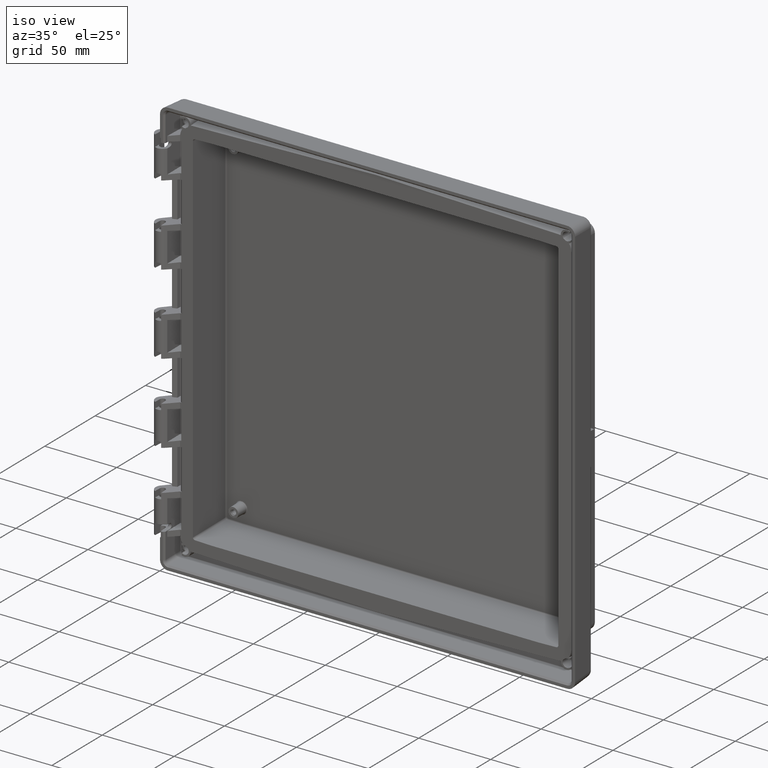
[diagram: clean part render]
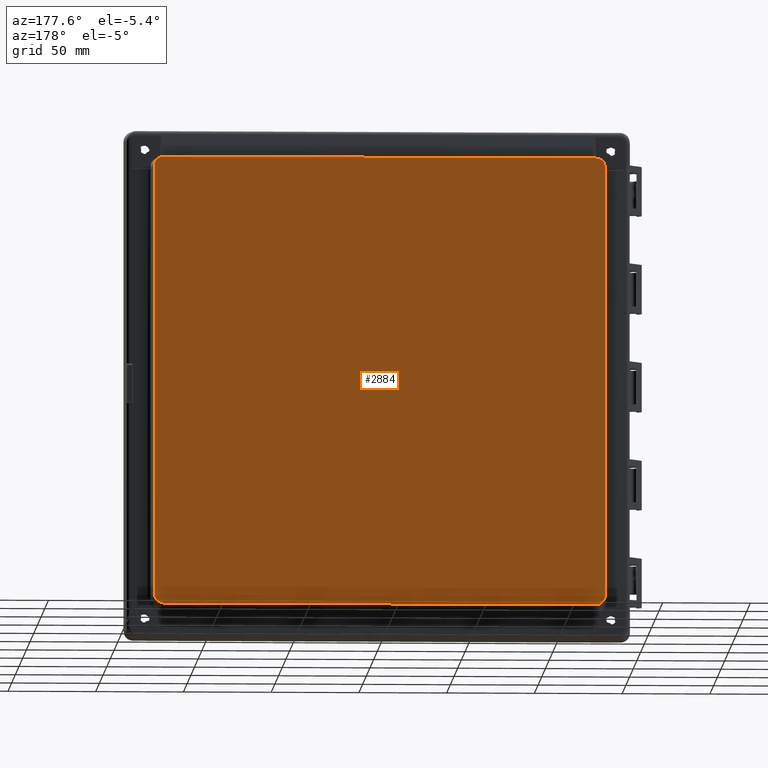
[diagram: tour spotlight — one face highlighted and labeled with its STEP entity id]
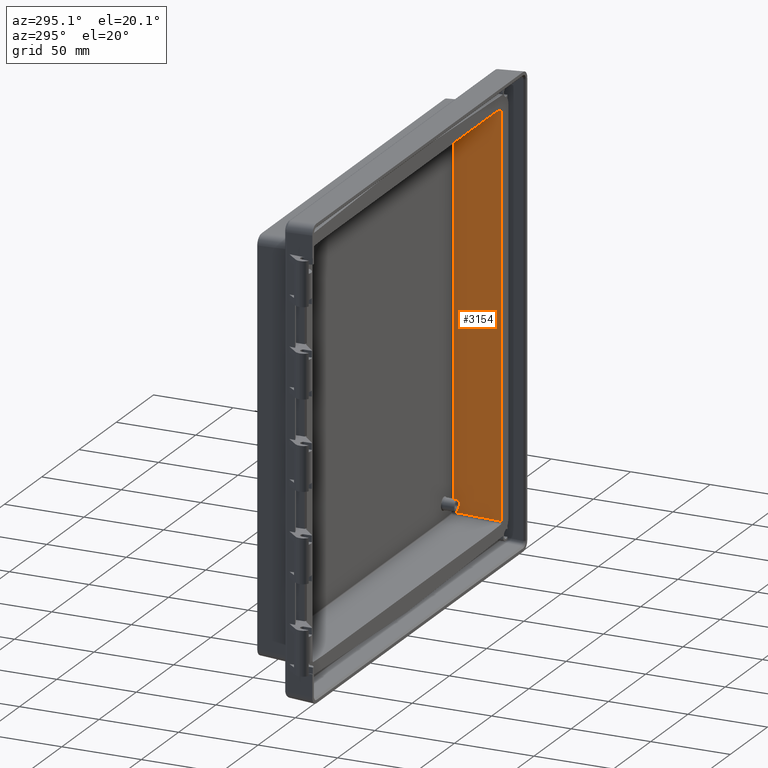
[diagram: tour spotlight — one face highlighted and labeled with its STEP entity id]
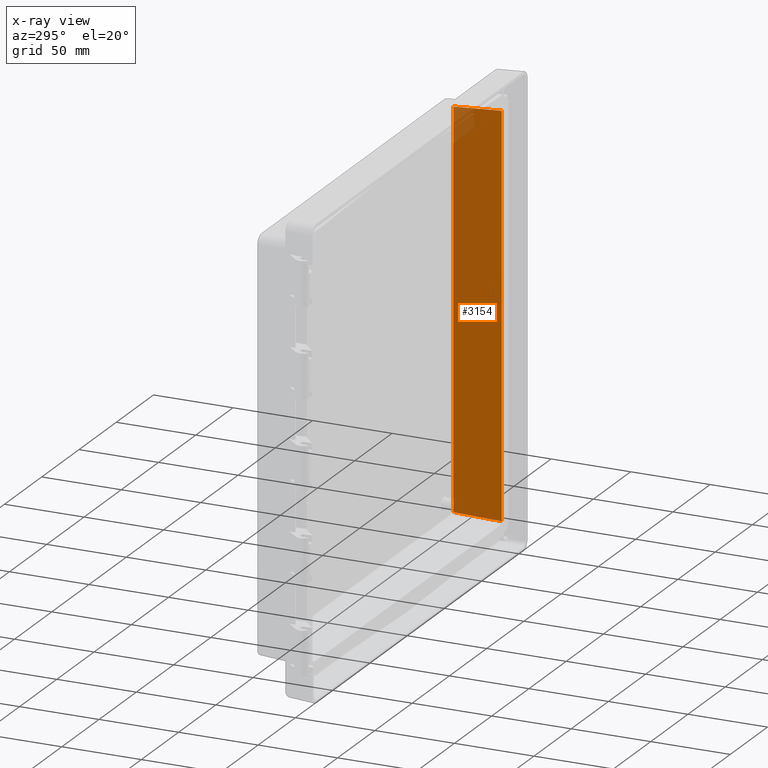
[diagram: x-ray of the same camera — body ghosted, this tour face saturated]
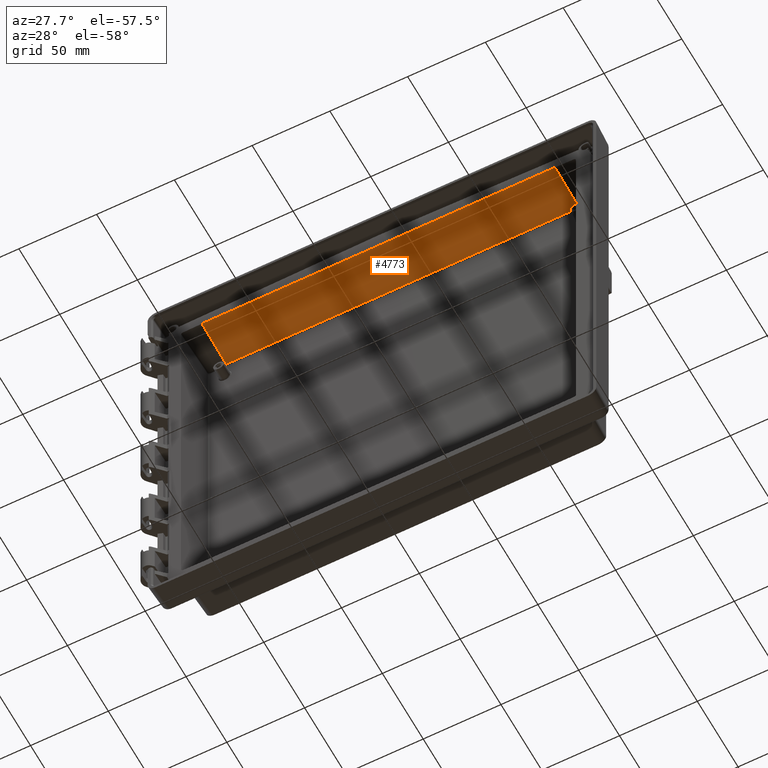
[diagram: tour spotlight — one face highlighted and labeled with its STEP entity id]
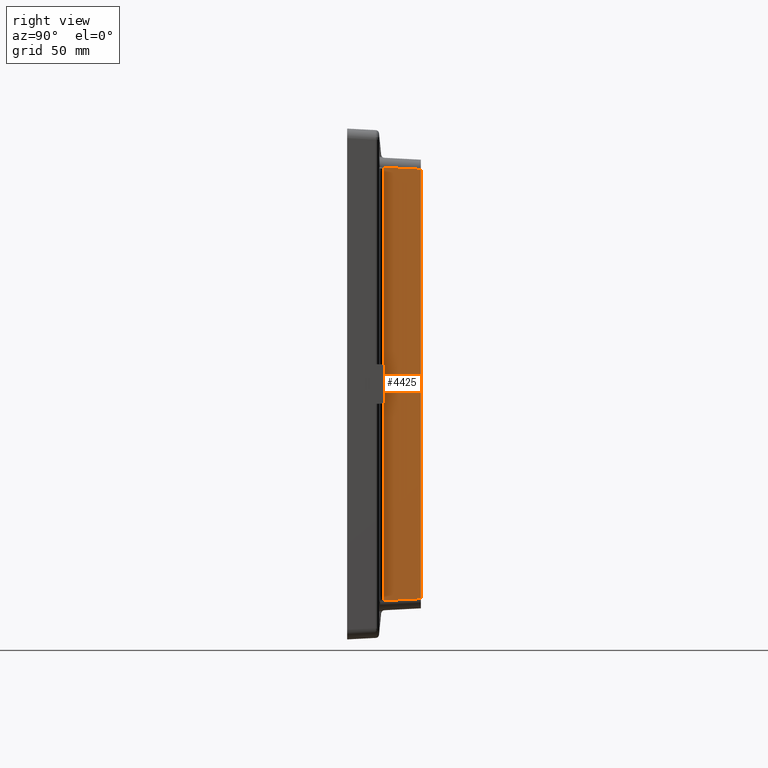
[diagram: tour spotlight — one face highlighted and labeled with its STEP entity id]
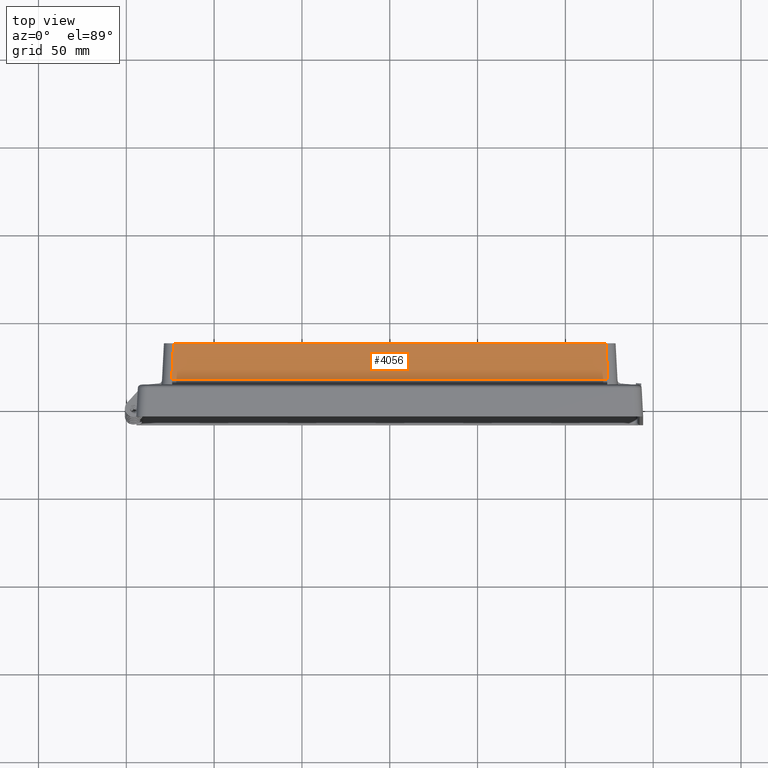
[diagram: tour spotlight — one face highlighted and labeled with its STEP entity id]
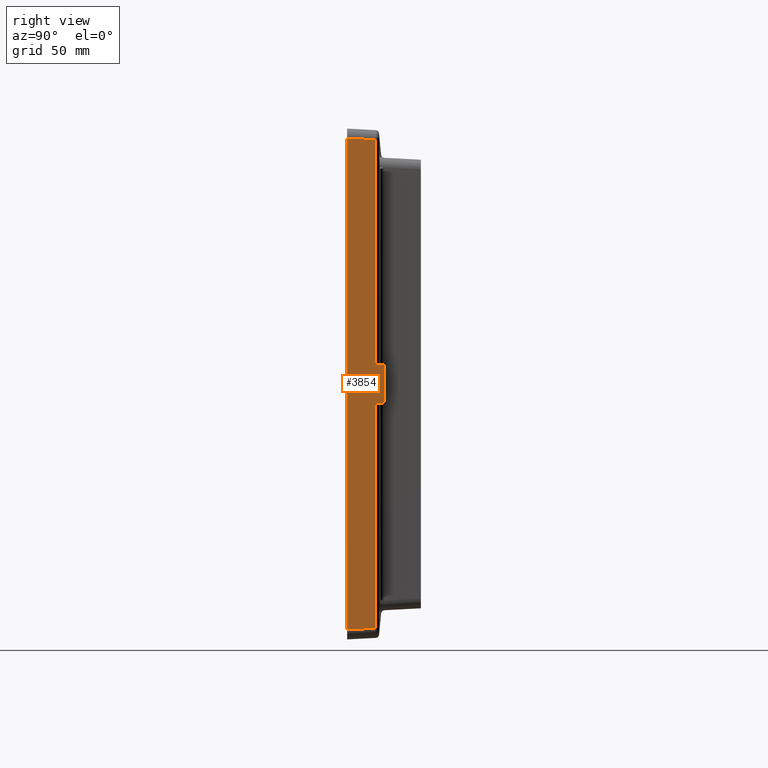
[diagram: tour spotlight — one face highlighted and labeled with its STEP entity id]
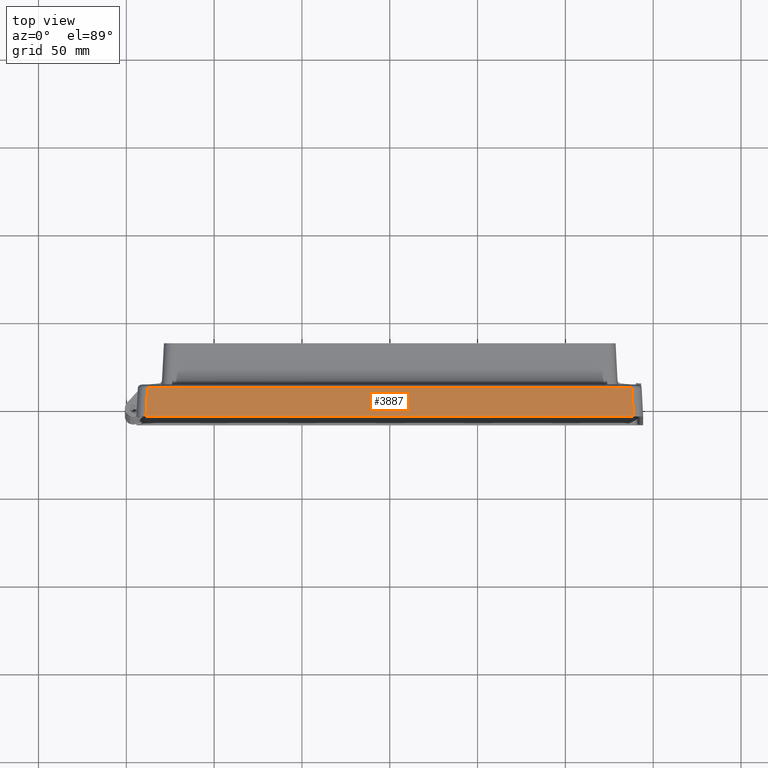
[diagram: tour spotlight — one face highlighted and labeled with its STEP entity id]
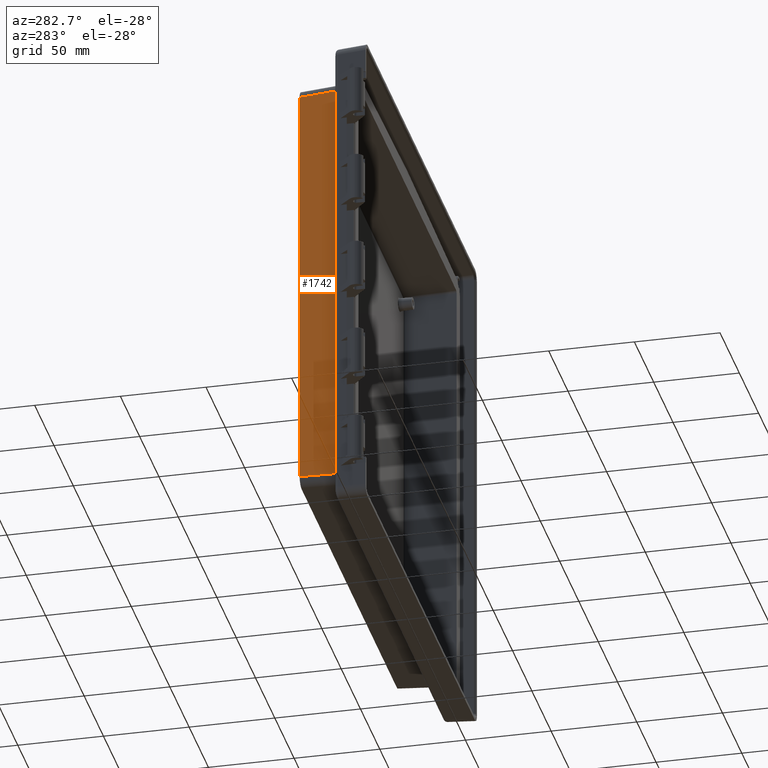
[diagram: tour spotlight — one face highlighted and labeled with its STEP entity id]
A machine part: a face-by-face anatomy tour. The part has 743 B-rep faces; the first image is the clean iso view, then the 8 largest visible faces are spotlighted one at a time (largest first), each with its STEP entity span.

Face 1 — auxiliary view, entity #2884. In plain terms, the highlighted planar face has unit normal (0, 1, -0).
Definition (entity closure, byte-faithful):
#1745 = EDGE_CURVE ( 'NONE', #11895, #11919, #12612, .T. ) ;
#2872 = ORIENTED_EDGE ( 'NONE', *, *, #2873, .F. ) ;
#2873 = EDGE_CURVE ( 'NONE', #11901, #2949, #14256, .T. ) ;
#2874 = ORIENTED_EDGE ( 'NONE', *, *, #11911, .F. ) ;
#2875 = ORIENTED_EDGE ( 'NONE', *, *, #1745, .T. ) ;
#2876 = ORIENTED_EDGE ( 'NONE', *, *, #11924, .F. ) ;
#2884 = ADVANCED_FACE ( 'NONE', ( #14302 ), #14301, .T. ) ;
#2885 = EDGE_LOOP ( 'NONE', ( #2886, #2889, #2892, #2947, #2872, #2874, #2875, #2876 ) ) ;
#2886 = ORIENTED_EDGE ( 'NONE', *, *, #2887, .T. ) ;
#2887 = EDGE_CURVE ( 'NONE', #11923, #2888, #14292, .T. ) ;
#2888 = VERTEX_POINT ( 'NONE', #14286 ) ;
#2889 = ORIENTED_EDGE ( 'NONE', *, *, #2890, .F. ) ;
#2890 = EDGE_CURVE ( 'NONE', #2891, #2888, #14284, .T. ) ;
#2891 = VERTEX_POINT ( 'NONE', #14285 ) ;
#2892 = ORIENTED_EDGE ( 'NONE', *, *, #2945, .F. ) ;
#2945 = EDGE_CURVE ( 'NONE', #2946, #2891, #14494, .T. ) ;
#2946 = VERTEX_POINT ( 'NONE', #14480 ) ;
#2947 = ORIENTED_EDGE ( 'NONE', *, *, #2948, .F. ) ;
#2948 = EDGE_CURVE ( 'NONE', #2949, #2946, #14472, .T. ) ;
#2949 = VERTEX_POINT ( 'NONE', #14471 ) ;
#11895 = VERTEX_POINT ( 'NONE', #28313 ) ;
#11901 = VERTEX_POINT ( 'NONE', #28359 ) ;
#11911 = EDGE_CURVE ( 'NONE', #11895, #11901, #28636, .T. ) ;
#11919 = VERTEX_POINT ( 'NONE', #28670 ) ;
#11923 = VERTEX_POINT ( 'NONE', #28665 ) ;
#11924 = EDGE_CURVE ( 'NONE', #11923, #11919, #28664, .T. ) ;
#12609 = DIRECTION ( 'NONE',  ( 3.603386792499978700E-009, 0.0000000000000000000, 1.000000000000000000 ) ) ;
#12610 = VECTOR ( 'NONE', #12609, 1000.000000000000000 ) ;
#12611 = CARTESIAN_POINT ( 'NONE',  ( -128.5681359447917200, 34.00000000000000000, -1.206215682891809100E-009 ) ) ;
#12612 = LINE ( 'NONE', #12611, #12610 ) ;
#14245 = DIRECTION ( 'NONE',  ( 1.000000000000000000, -1.870275234238606000E-010, -9.801752165201994300E-012 ) ) ;
#14246 = VECTOR ( 'NONE', #14245, 1000.000000000000000 ) ;
#14255 = CARTESIAN_POINT ( 'NONE',  ( 1.206507116435773200E-009, 33.99999997698204600, -127.7181355055829200 ) ) ;
#14256 = LINE ( 'NONE', #14255, #14246 ) ;
#14284 = B_SPLINE_CURVE_WITH_KNOTS ( 'NONE', 3,
 ( #14330, #14329, #14328, #14327, #14326, #14325, #14324, #14323, #14322, #14321, #14320, #14319, #14318, #14317, #14316, #14315, #14314, #14313, #14312, #14311, #14310, #14309, #14308, #14307, #14306, #14305 ),
 .UNSPECIFIED., .F., .F.,
 ( 4, 2, 2, 1, 1, 2, 2, 2, 2, 2, 1, 1, 2, 2, 4 ),
 ( 0.0000000000000000000, 0.1250000000000335800, 0.1875000000000513500, 0.2187500000000626200, 0.2343750000000682200, 0.2421875000000710300, 0.2500000000000738300, 0.5000000000001165700, 0.6250000000001344500, 0.6875000000001462200, 0.7187500000001497700, 0.7343750000001515500, 0.7421875000001548800, 0.7500000000001582100, 1.000000000000000000 ),
 .UNSPECIFIED. ) ;
#14285 = CARTESIAN_POINT ( 'NONE',  ( 128.5681355067892500, 33.99999995396407800, 122.2225573218197500 ) ) ;
#14286 = CARTESIAN_POINT ( 'NONE',  ( 123.0725573194074200, 34.00000000000000000, 127.7181355043765800 ) ) ;
#14287 = DIRECTION ( 'NONE',  ( 1.000000000000000000, 1.870275234238604000E-010, -9.801752165201983000E-012 ) ) ;
#14288 = VECTOR ( 'NONE', #14287, 1000.000000000000000 ) ;
#14289 = CARTESIAN_POINT ( 'NONE',  ( -1.206403033027214600E-009, 33.99999997698204600, 127.7181355055829200 ) ) ;
#14290 = DIRECTION ( 'NONE',  ( 0.0000000000000000000, 0.0000000000000000000, 1.000000000000000000 ) ) ;
#14291 = DIRECTION ( 'NONE',  ( 0.0000000000000000000, 1.000000000000000000, -0.0000000000000000000 ) ) ;
#14292 = LINE ( 'NONE', #14289, #14288 ) ;
#14299 = CARTESIAN_POINT ( 'NONE',  ( 0.0000000000000000000, 34.00000000000000000, 0.0000000000000000000 ) ) ;
#14300 = AXIS2_PLACEMENT_3D ( 'NONE', #14299, #14291, #14290 ) ;
#14301 = PLANE ( 'NONE',  #14300 ) ;
#14302 = FACE_OUTER_BOUND ( 'NONE', #2885, .T. ) ;
#14305 = CARTESIAN_POINT ( 'NONE',  ( 123.0725573194074200, 34.00000000000000000, 127.7181355043765800 ) ) ;
#14306 = CARTESIAN_POINT ( 'NONE',  ( 123.8262814603974500, 34.00006932271326600, 127.7181327521571900 ) ) ;
#14307 = CARTESIAN_POINT ( 'NONE',  ( 124.5428295193994300, 34.00001008939228300, 127.5623699811602700 ) ) ;
#14308 = CARTESIAN_POINT ( 'NONE',  ( 125.1958222557653600, 33.99999968423141200, 127.2922183872671300 ) ) ;
#14309 = CARTESIAN_POINT ( 'NONE',  ( 125.2180538904343900, 33.99999948721435300, 127.2828676774262500 ) ) ;
#14310 = CARTESIAN_POINT ( 'NONE',  ( 125.2598827194698000, 33.99999939697549000, 127.2649505104751700 ) ) ;
#14311 = CARTESIAN_POINT ( 'NONE',  ( 125.3224340222614500, 33.99999965824257200, 127.2376957055053900 ) ) ;
#14312 = CARTESIAN_POINT ( 'NONE',  ( 125.4670126359697100, 34.00000252701167400, 127.1714687502145400 ) ) ;
#14313 = CARTESIAN_POINT ( 'NONE',  ( 125.5884762337906000, 34.00000719313460000, 127.1102630718057000 ) ) ;
#14314 = CARTESIAN_POINT ( 'NONE',  ( 125.8278541850013900, 34.00001618187764800, 126.9821373911130600 ) ) ;
#14315 = CARTESIAN_POINT ( 'NONE',  ( 125.9827026635980300, 34.00002130127625600, 126.8890977480086400 ) ) ;
#14316 = CARTESIAN_POINT ( 'NONE',  ( 126.4310519211209000, 34.00002300705133300, 126.5888864377308100 ) ) ;
#14317 = CARTESIAN_POINT ( 'NONE',  ( 126.7082794026281900, 33.99999976286426300, 126.3605816227583200 ) ) ;
#14318 = CARTESIAN_POINT ( 'NONE',  ( 127.4617326733999900, 34.00000047427152300, 125.6071282804840300 ) ) ;
#14319 = CARTESIAN_POINT ( 'NONE',  ( 127.8718733568609300, 33.99998836856858700, 124.9992827306870700 ) ) ;
#14320 = CARTESIAN_POINT ( 'NONE',  ( 128.1591089235439500, 34.00000036328882700, 124.3049955523335700 ) ) ;
#14321 = CARTESIAN_POINT ( 'NONE',  ( 128.1666758319158500, 34.00000091243691000, 124.2863777582267600 ) ) ;
#14322 = CARTESIAN_POINT ( 'NONE',  ( 128.1826346427742500, 34.00000243778307400, 124.2464869269522300 ) ) ;
#14323 = CARTESIAN_POINT ( 'NONE',  ( 128.2062590309859900, 34.00000530248647800, 124.1864175831204900 ) ) ;
#14324 = CARTESIAN_POINT ( 'NONE',  ( 128.2591517645375600, 34.00001528476654000, 124.0446440473506000 ) ) ;
#14325 = CARTESIAN_POINT ( 'NONE',  ( 128.3005474414011400, 34.00002706284190200, 123.9204311565898400 ) ) ;
#14326 = CARTESIAN_POINT ( 'NONE',  ( 128.3777762036051200, 34.00004971309233100, 123.6686238204254100 ) ) ;
#14327 = CARTESIAN_POINT ( 'NONE',  ( 128.4218430067699300, 34.00006305589375400, 123.4962352880103500 ) ) ;
#14328 = CARTESIAN_POINT ( 'NONE',  ( 128.5293853582832600, 34.00007487603052400, 122.9674820607044600 ) ) ;
#14329 = CARTESIAN_POINT ( 'NONE',  ( 128.5681345778162400, 34.00003448706893700, 122.5993946392701000 ) ) ;
#14330 = CARTESIAN_POINT ( 'NONE',  ( 128.5681355067892500, 33.99999995396407800, 122.2225573218197500 ) ) ;
#14470 = CARTESIAN_POINT ( 'NONE',  ( 123.4494017726701900, 34.00003465766961600, -127.7181345688752100 ) ) ;
#14471 = CARTESIAN_POINT ( 'NONE',  ( 123.0725573218202000, 33.99999995396409200, -127.7181355067892400 ) ) ;
#14472 = B_SPLINE_CURVE_WITH_KNOTS ( 'NONE', 3,
 ( #14474, #14470, #14537, #14536, #14535, #14534, #14533, #14532, #14531, #14530, #14529, #14528, #14527, #14526, #14525, #14524, #14523, #14522, #14521, #14520, #14519, #14518, #14517, #14516, #14515, #14514 ),
 .UNSPECIFIED., .F., .F.,
 ( 4, 2, 2, 1, 1, 2, 2, 2, 2, 2, 1, 1, 2, 2, 4 ),
 ( 0.0000000000000000000, 0.1249999999999602300, 0.1874999999999370200, 0.2187499999999239500, 0.2343749999999167600, 0.2421874999999160700, 0.2499999999999153500, 0.4999999999999112900, 0.6249999999999128500, 0.6874999999999162900, 0.7187499999999201700, 0.7343749999999241700, 0.7421874999999242800, 0.7499999999999242800, 1.000000000000000000 ),
 .UNSPECIFIED. ) ;
#14474 = CARTESIAN_POINT ( 'NONE',  ( 123.0725573218202000, 33.99999995396409200, -127.7181355067892400 ) ) ;
#14480 = CARTESIAN_POINT ( 'NONE',  ( 128.5681355043765800, 34.00000000000000000, -122.2225573194073900 ) ) ;
#14491 = DIRECTION ( 'NONE',  ( 9.869918709275913400E-012, -1.883282680432615100E-010, 1.000000000000000000 ) ) ;
#14492 = VECTOR ( 'NONE', #14491, 1000.000000000000000 ) ;
#14493 = CARTESIAN_POINT ( 'NONE',  ( 128.5681355055829400, 33.99999997698203900, 1.206180988422289600E-009 ) ) ;
#14494 = LINE ( 'NONE', #14493, #14492 ) ;
#14514 = CARTESIAN_POINT ( 'NONE',  ( 128.5681355043765800, 34.00000000000000000, -122.2225573194073900 ) ) ;
#14515 = CARTESIAN_POINT ( 'NONE',  ( 128.5681327704140800, 34.00006897435489600, -122.9762668433222800 ) ) ;
#14516 = CARTESIAN_POINT ( 'NONE',  ( 128.4123755714273300, 34.00001009044216000, -123.6928159857479800 ) ) ;
#14517 = CARTESIAN_POINT ( 'NONE',  ( 128.1422182380397300, 33.99999968419960800, -124.3458226171317200 ) ) ;
#14518 = CARTESIAN_POINT ( 'NONE',  ( 128.1328677031890500, 33.99999948716162400, -124.3680538295969700 ) ) ;
#14519 = CARTESIAN_POINT ( 'NONE',  ( 128.1149505372902400, 33.99999939687404500, -124.4098826575884700 ) ) ;
#14520 = CARTESIAN_POINT ( 'NONE',  ( 128.0876957338838600, 33.99999965807295200, -124.4724339589124900 ) ) ;
#14521 = CARTESIAN_POINT ( 'NONE',  ( 128.0214687821130600, 34.00000252671584600, -124.6170125698782100 ) ) ;
#14522 = CARTESIAN_POINT ( 'NONE',  ( 127.9602631064214500, 34.00000719278141000, -124.7384761664914700 ) ) ;
#14523 = CARTESIAN_POINT ( 'NONE',  ( 127.8321374305585200, 34.00001618146208000, -124.9778541167262500 ) ) ;
#14524 = CARTESIAN_POINT ( 'NONE',  ( 127.7390977898633700, 34.00002130088915900, -125.1327025965970600 ) ) ;
#14525 = CARTESIAN_POINT ( 'NONE',  ( 127.4388864828778800, 34.00002300683358000, -125.5810518628128700 ) ) ;
#14526 = CARTESIAN_POINT ( 'NONE',  ( 127.2105816647666500, 33.99999976287050900, -125.8582793566805700 ) ) ;
#14527 = CARTESIAN_POINT ( 'NONE',  ( 126.4571282877563200, 34.00000047425905300, -126.6117326740065700 ) ) ;
#14528 = CARTESIAN_POINT ( 'NONE',  ( 125.8492827550389600, 33.99998836852569900, -127.0218733436991800 ) ) ;
#14529 = CARTESIAN_POINT ( 'NONE',  ( 125.1549955720927600, 34.00000036328983600, -127.3091089154656600 ) ) ;
#14530 = CARTESIAN_POINT ( 'NONE',  ( 125.1363785906520700, 34.00000091278018000, -127.3166754933237600 ) ) ;
#14531 = CARTESIAN_POINT ( 'NONE',  ( 125.0964885387201500, 34.00000243946750800, -127.3326340033810500 ) ) ;
#14532 = CARTESIAN_POINT ( 'NONE',  ( 125.0364203304651100, 34.00000530714589100, -127.3562579695496900 ) ) ;
#14533 = CARTESIAN_POINT ( 'NONE',  ( 124.8946492050961400, 34.00001530239276800, -127.4091499139605500 ) ) ;
#14534 = CARTESIAN_POINT ( 'NONE',  ( 124.7704379527669100, 34.00002709944578100, -127.4505452201668900 ) ) ;
#14535 = CARTESIAN_POINT ( 'NONE',  ( 124.5186332830145900, 34.00004979161714400, -127.5277735646209200 ) ) ;
#14536 = CARTESIAN_POINT ( 'NONE',  ( 124.3462457114737700, 34.00006316758986500, -127.5718405222918600 ) ) ;
#14537 = CARTESIAN_POINT ( 'NONE',  ( 123.8174926875070000, 34.00007505234594200, -127.6793839005578200 ) ) ;
#28313 = CARTESIAN_POINT ( 'NONE',  ( -128.5681363852068600, 34.00000000000000000, -122.2225573218198100 ) ) ;
#28359 = CARTESIAN_POINT ( 'NONE',  ( -123.0725573194071800, 34.00000000000000000, -127.7181355043765800 ) ) ;
#28601 = CARTESIAN_POINT ( 'NONE',  ( -123.0725573194071800, 34.00000000000000000, -127.7181355043765800 ) ) ;
#28602 = CARTESIAN_POINT ( 'NONE',  ( -123.8262811119270600, 34.00006931576130900, -127.7181327525216700 ) ) ;
#28603 = CARTESIAN_POINT ( 'NONE',  ( -124.5428291743361500, 34.00001009023291200, -127.5623701151368300 ) ) ;
#28604 = CARTESIAN_POINT ( 'NONE',  ( -125.1958222049883200, 33.99999968420613100, -127.2922184085487300 ) ) ;
#28605 = CARTESIAN_POINT ( 'NONE',  ( -125.2180538297947300, 33.99999948716146700, -127.2828677031056800 ) ) ;
#28606 = CARTESIAN_POINT ( 'NONE',  ( -125.2598826579732200, 33.99999939687347700, -127.2649505371240500 ) ) ;
#28607 = CARTESIAN_POINT ( 'NONE',  ( -125.3224339595666100, 33.99999965807150900, -127.2376957335939500 ) ) ;
#28608 = CARTESIAN_POINT ( 'NONE',  ( -125.4670125710851900, 34.00000252671080900, -127.1714687815407800 ) ) ;
#28609 = CARTESIAN_POINT ( 'NONE',  ( -125.5884761680450100, 34.00000719277114300, -127.1102631056273700 ) ) ;
#28610 = CARTESIAN_POINT ( 'NONE',  ( -125.8278541188111500, 34.00001618144027300, -126.9821374293709500 ) ) ;
#28611 = CARTESIAN_POINT ( 'NONE',  ( -125.9827025988200800, 34.00002130085813700, -126.8890977884807000 ) ) ;
#28612 = CARTESIAN_POINT ( 'NONE',  ( -126.4310518648935900, 34.00002300678392700, -126.5888864812826700 ) ) ;
#28613 = CARTESIAN_POINT ( 'NONE',  ( -126.7082793579162300, 33.99999976282072800, -126.3605816635361400 ) ) ;
#28614 = CARTESIAN_POINT ( 'NONE',  ( -127.4617326715354600, 34.00000047435859300, -125.6071282902168600 ) ) ;
#28615 = CARTESIAN_POINT ( 'NONE',  ( -127.8718733433835100, 33.99998836864809000, -124.9992827557801000 ) ) ;
#28616 = CARTESIAN_POINT ( 'NONE',  ( -128.1591089154756600, 34.00000036328598400, -124.3049955720693000 ) ) ;
#28617 = CARTESIAN_POINT ( 'NONE',  ( -128.1666754931624200, 34.00000091277323100, -124.2863785910500700 ) ) ;
#28618 = CARTESIAN_POINT ( 'NONE',  ( -128.1826340030727100, 34.00000243945447700, -124.2464885395001500 ) ) ;
#28619 = CARTESIAN_POINT ( 'NONE',  ( -128.2062579690350500, 34.00000530712454600, -124.1864203318017000 ) ) ;
#28620 = CARTESIAN_POINT ( 'NONE',  ( -128.2591499130602100, 34.00001530235729800, -124.0446492076142800 ) ) ;
#28621 = CARTESIAN_POINT ( 'NONE',  ( -128.3005452190854200, 34.00002709940610400, -123.9204379560883100 ) ) ;
#28622 = CARTESIAN_POINT ( 'NONE',  ( -128.3777735633353200, 34.00004979157638700, -123.6686332876433700 ) ) ;
#28631 = CARTESIAN_POINT ( 'NONE',  ( -128.4218405210818000, 34.00006316755812500, -123.4962457165740200 ) ) ;
#28632 = CARTESIAN_POINT ( 'NONE',  ( -128.5293838998493600, 34.00007505234583500, -122.9674926927091900 ) ) ;
#28633 = CARTESIAN_POINT ( 'NONE',  ( -128.5681345688740000, 34.00003465769552900, -122.5994017761627100 ) ) ;
#28634 = CARTESIAN_POINT ( 'NONE',  ( -128.5681363852068600, 34.00000000000000000, -122.2225573218198100 ) ) ;
#28636 = B_SPLINE_CURVE_WITH_KNOTS ( 'NONE', 3,
 ( #28634, #28633, #28632, #28631, #28622, #28621, #28620, #28619, #28618, #28617, #28616, #28615, #28614, #28613, #28612, #28611, #28610, #28609, #28608, #28607, #28606, #28605, #28604, #28603, #28602, #28601 ),
 .UNSPECIFIED., .F., .F.,
 ( 4, 2, 2, 1, 1, 2, 2, 2, 2, 2, 1, 1, 2, 2, 4 ),
 ( 0.0000000000000000000, 0.1250000000000561500, 0.1875000000000842100, 0.2187500000000997000, 0.2343750000001114900, 0.2421875000001150500, 0.2500000000001185700, 0.5000000000001051400, 0.6250000000001019200, 0.6875000000000990300, 0.7187500000000952600, 0.7343750000000977000, 0.7421875000000989200, 0.7500000000001000300, 1.000000000000000000 ),
 .UNSPECIFIED. ) ;
#28637 = CARTESIAN_POINT ( 'NONE',  ( -127.9602630716839300, 34.00000719312826200, 124.7384762340298900 ) ) ;
#28638 = CARTESIAN_POINT ( 'NONE',  ( -127.8321373909308000, 34.00001618186773600, 124.9778541853225600 ) ) ;
#28639 = CARTESIAN_POINT ( 'NONE',  ( -127.7390977477963800, 34.00002130126432600, 125.1327026639404900 ) ) ;
#28640 = CARTESIAN_POINT ( 'NONE',  ( -127.4388864374858800, 34.00002300703654600, 125.5810519214414600 ) ) ;
#28641 = CARTESIAN_POINT ( 'NONE',  ( -127.2105816225694100, 33.99999976285183600, 125.8582794028184700 ) ) ;
#28642 = CARTESIAN_POINT ( 'NONE',  ( -126.4571282808625300, 34.00000047429639200, 126.6117326730188900 ) ) ;
#28643 = CARTESIAN_POINT ( 'NONE',  ( -125.8492827307927100, 33.99998836859673200, 127.0218733568149500 ) ) ;
#28644 = CARTESIAN_POINT ( 'NONE',  ( -125.1549955523306700, 34.00000036328795300, 127.3091089235450500 ) ) ;
#28645 = CARTESIAN_POINT ( 'NONE',  ( -125.1363785714855500, 34.00000091277657800, 127.3166755010771700 ) ) ;
#28647 = CARTESIAN_POINT ( 'NONE',  ( -125.0964885202736100, 34.00000243946063000, 127.3326340106760200 ) ) ;
#28648 = CARTESIAN_POINT ( 'NONE',  ( -125.0364203130871500, 34.00000530713483500, 127.3562579761771300 ) ) ;
#28649 = CARTESIAN_POINT ( 'NONE',  ( -124.8946491901278600, 34.00001530237612700, 127.4091499191674000 ) ) ;
#28650 = CARTESIAN_POINT ( 'NONE',  ( -124.7704379397103500, 34.00002709943055400, 127.4505452243796800 ) ) ;
#28651 = CARTESIAN_POINT ( 'NONE',  ( -124.5186332735504200, 34.00004979160986800, 127.5277735671096500 ) ) ;
#28659 = CARTESIAN_POINT ( 'NONE',  ( -124.3462457040957500, 34.00006316759468900, 127.5718405239847000 ) ) ;
#28660 = CARTESIAN_POINT ( 'NONE',  ( -123.8174926852907400, 34.00007505238297500, 127.6793839006211200 ) ) ;
#28661 = CARTESIAN_POINT ( 'NONE',  ( -123.4494017724095200, 34.00003465772173400, 127.7181345688724300 ) ) ;
#28662 = CARTESIAN_POINT ( 'NONE',  ( -123.0725573218202300, 33.99999995396409200, 127.7181355067892400 ) ) ;
#28664 = B_SPLINE_CURVE_WITH_KNOTS ( 'NONE', 3,
 ( #28662, #28661, #28660, #28659, #28651, #28650, #28649, #28648, #28647, #28645, #28644, #28643, #28642, #28641, #28640, #28639, #28638, #28637, #28708, #28707, #28706, #28705, #28704, #28703, #28702, #28701 ),
 .UNSPECIFIED., .F., .F.,
 ( 4, 2, 2, 1, 1, 2, 2, 2, 2, 2, 1, 1, 2, 2, 4 ),
 ( 0.0000000000000000000, 0.1249999999999355500, 0.1874999999999047200, 0.2187499999998902000, 0.2343749999998822900, 0.2421874999998765200, 0.2499999999998707400, 0.4999999999999531500, 0.6249999999999977800, 0.6875000000000174300, 0.7187500000000273100, 0.7343750000000323100, 0.7421875000000346400, 0.7500000000000370800, 1.000000000000000000 ),
 .UNSPECIFIED. ) ;
#28665 = CARTESIAN_POINT ( 'NONE',  ( -123.0725573218202300, 33.99999995396409200, 127.7181355067892400 ) ) ;
#28670 = CARTESIAN_POINT ( 'NONE',  ( -128.5681355043765600, 34.00000000000000000, 122.2225573194073700 ) ) ;
#28701 = CARTESIAN_POINT ( 'NONE',  ( -128.5681355043765600, 34.00000000000000000, 122.2225573194073700 ) ) ;
#28702 = CARTESIAN_POINT ( 'NONE',  ( -128.5681327521574500, 34.00006932271276800, 122.9762814599942000 ) ) ;
#28703 = CARTESIAN_POINT ( 'NONE',  ( -128.4123699813139900, 34.00001008940140700, 123.6928295190266200 ) ) ;
#28704 = CARTESIAN_POINT ( 'NONE',  ( -128.1422183872625200, 33.99999968423112100, 124.3458222557768400 ) ) ;
#28705 = CARTESIAN_POINT ( 'NONE',  ( -128.1328676774136600, 33.99999948721375600, 124.3680538904647600 ) ) ;
#28706 = CARTESIAN_POINT ( 'NONE',  ( -128.1149505104499200, 33.99999939697425300, 124.4098827195290200 ) ) ;
#28707 = CARTESIAN_POINT ( 'NONE',  ( -128.0876957054610400, 33.99999965824039100, 124.4724340223620900 ) ) ;
#28708 = CARTESIAN_POINT ( 'NONE',  ( -128.0214687501268100, 34.00000252700722600, 124.6170126361555800 ) ) ;

Face 2 — auxiliary view, entity #3154. An x-ray twin of the same camera follows (body ghosted, this face saturated) — the face is partly hidden behind the body. In plain terms, the highlighted planar face has unit normal (-0.9986, -0.0523, 0).
Definition (entity closure, byte-faithful):
#3106 = EDGE_CURVE ( 'NONE', #3125, #3107, #15105, .T. ) ;
#3107 = VERTEX_POINT ( 'NONE', #15091 ) ;
#3125 = VERTEX_POINT ( 'NONE', #15220 ) ;
#3150 = EDGE_CURVE ( 'NONE', #3151, #3107, #15267, .T. ) ;
#3151 = VERTEX_POINT ( 'NONE', #15263 ) ;
#3154 = ADVANCED_FACE ( 'NONE', ( #15293 ), #15295, .T. ) ;
#3155 = EDGE_LOOP ( 'NONE', ( #3156, #3157, #3158, #3215 ) ) ;
#3156 = ORIENTED_EDGE ( 'NONE', *, *, #3150, .T. ) ;
#3157 = ORIENTED_EDGE ( 'NONE', *, *, #3106, .F. ) ;
#3158 = ORIENTED_EDGE ( 'NONE', *, *, #3159, .T. ) ;
#3159 = EDGE_CURVE ( 'NONE', #3125, #3160, #15335, .T. ) ;
#3160 = VERTEX_POINT ( 'NONE', #15331 ) ;
#3215 = ORIENTED_EDGE ( 'NONE', *, *, #3216, .F. ) ;
#3216 = EDGE_CURVE ( 'NONE', #3151, #3160, #15434, .T. ) ;
#15091 = CARTESIAN_POINT ( 'NONE',  ( 125.4521298545326300, 29.65233595624286900, 122.9272232616049200 ) ) ;
#15092 = DIRECTION ( 'NONE',  ( 0.0000000000000000000, 0.0000000000000000000, 1.000000000000000000 ) ) ;
#15103 = VECTOR ( 'NONE', #15092, 1000.000000000000000 ) ;
#15104 = CARTESIAN_POINT ( 'NONE',  ( 125.4521298545326300, 29.65233595624286900, -2.428612866367529900E-013 ) ) ;
#15105 = LINE ( 'NONE', #15104, #15103 ) ;
#15220 = CARTESIAN_POINT ( 'NONE',  ( 125.4521298545334700, 29.65233595624304600, -122.9272232616052900 ) ) ;
#15262 = CARTESIAN_POINT ( 'NONE',  ( 126.2291363935433600, 14.82616797812149700, 123.6841495203334900 ) ) ;
#15263 = CARTESIAN_POINT ( 'NONE',  ( 127.0061429325540600, 3.469446951953609900E-015, 124.4410757790618000 ) ) ;
#15264 = DIRECTION ( 'NONE',  ( -0.05226806986324944400, 0.9973341854643783500, -0.05091729938709793600 ) ) ;
#15265 = VECTOR ( 'NONE', #15264, 1000.000000000000100 ) ;
#15267 = LINE ( 'NONE', #15262, #15265 ) ;
#15289 = DIRECTION ( 'NONE',  ( 0.05233595624294390400, -0.9986295347545739400, 0.0000000000000000000 ) ) ;
#15290 = DIRECTION ( 'NONE',  ( -0.9986295347545739400, -0.05233595624294390400, 0.0000000000000000000 ) ) ;
#15291 = CARTESIAN_POINT ( 'NONE',  ( 127.0061429325540000, 3.469446951953609900E-015, -125.0000000000000000 ) ) ;
#15292 = AXIS2_PLACEMENT_3D ( 'NONE', #15291, #15290, #15289 ) ;
#15293 = FACE_OUTER_BOUND ( 'NONE', #3155, .T. ) ;
#15295 = PLANE ( 'NONE',  #15292 ) ;
#15331 = CARTESIAN_POINT ( 'NONE',  ( 127.0061429325540000, 3.469446951953609900E-015, -124.4410757790619500 ) ) ;
#15332 = DIRECTION ( 'NONE',  ( 0.05226806986324873700, -0.9973341854643784600, -0.05091729938709442500 ) ) ;
#15333 = VECTOR ( 'NONE', #15332, 1000.000000000000200 ) ;
#15334 = CARTESIAN_POINT ( 'NONE',  ( 126.2291363935433300, 14.82616797812143400, -123.6841495203336900 ) ) ;
#15335 = LINE ( 'NONE', #15334, #15333 ) ;
#15431 = DIRECTION ( 'NONE',  ( -2.230419131453618500E-016, 0.0000000000000000000, -1.000000000000000000 ) ) ;
#15432 = VECTOR ( 'NONE', #15431, 1000.000000000000000 ) ;
#15433 = CARTESIAN_POINT ( 'NONE',  ( 127.0061429325540300, 3.469446951953609900E-015, -7.632783294297951200E-014 ) ) ;
#15434 = LINE ( 'NONE', #15433, #15432 ) ;

Face 3 — auxiliary view, entity #4773. In plain terms, the highlighted planar face has unit normal (0, -0.0523, -0.9986).
Definition (entity closure, byte-faithful):
#1574 = VERTEX_POINT ( 'NONE', #12250 ) ;
#1635 = EDGE_CURVE ( 'NONE', #1574, #1636, #12369, .T. ) ;
#1636 = VERTEX_POINT ( 'NONE', #12368 ) ;
#3165 = EDGE_CURVE ( 'NONE', #3166, #3185, #15323, .T. ) ;
#3166 = VERTEX_POINT ( 'NONE', #15316 ) ;
#3185 = VERTEX_POINT ( 'NONE', #15380 ) ;
#4701 = EDGE_CURVE ( 'NONE', #3166, #1636, #21090, .T. ) ;
#4773 = ADVANCED_FACE ( 'NONE', ( #21130 ), #21125, .T. ) ;
#4774 = EDGE_LOOP ( 'NONE', ( #4775, #4776, #4777, #4779 ) ) ;
#4775 = ORIENTED_EDGE ( 'NONE', *, *, #4701, .T. ) ;
#4776 = ORIENTED_EDGE ( 'NONE', *, *, #1635, .F. ) ;
#4777 = ORIENTED_EDGE ( 'NONE', *, *, #4778, .F. ) ;
#4778 = EDGE_CURVE ( 'NONE', #3185, #1574, #21120, .T. ) ;
#4779 = ORIENTED_EDGE ( 'NONE', *, *, #3165, .F. ) ;
#12250 = CARTESIAN_POINT ( 'NONE',  ( -113.4622346338299200, 29.65233483222445800, 124.7004703914934000 ) ) ;
#12368 = CARTESIAN_POINT ( 'NONE',  ( -113.4789220335278800, 0.0000000000000000000, 126.2545312587521400 ) ) ;
#12369 = B_SPLINE_CURVE_WITH_KNOTS ( 'NONE', 3,
 ( #12414, #12413, #12412, #12411 ),
 .UNSPECIFIED., .F., .F.,
 ( 4, 4 ),
 ( 0.0000000000000000000, 1.000000000000000000 ),
 .UNSPECIFIED. ) ;
#12411 = CARTESIAN_POINT ( 'NONE',  ( -113.4789220335278800, 0.0000000000000000000, 126.2545312587521400 ) ) ;
#12412 = CARTESIAN_POINT ( 'NONE',  ( -113.4751863986135400, 9.884108964064438400, 125.7364473108464600 ) ) ;
#12413 = CARTESIAN_POINT ( 'NONE',  ( -113.4714507636992000, 19.76821792812888400, 125.2183633629407600 ) ) ;
#12414 = CARTESIAN_POINT ( 'NONE',  ( -113.4622346338299200, 29.65233483222445800, 124.7004703914934000 ) ) ;
#15316 = CARTESIAN_POINT ( 'NONE',  ( 113.4789220335499200, 0.0000000000000000000, 126.2545312587521400 ) ) ;
#15317 = DIRECTION ( 'NONE',  ( -0.0006851150356326662300, 0.9986293003848764100, -0.05233594396015200200 ) ) ;
#15318 = VECTOR ( 'NONE', #15317, 1000.000000000000200 ) ;
#15319 = CARTESIAN_POINT ( 'NONE',  ( 113.4687504607764100, 14.82616797812146300, 125.4775247197413800 ) ) ;
#15323 = LINE ( 'NONE', #15319, #15318 ) ;
#15380 = CARTESIAN_POINT ( 'NONE',  ( 113.4585788880029500, 29.65233595624287600, 124.7005181807305700 ) ) ;
#21080 = DIRECTION ( 'NONE',  ( -1.000000000000000000, 0.0000000000000000000, 0.0000000000000000000 ) ) ;
#21081 = VECTOR ( 'NONE', #21080, 1000.000000000000000 ) ;
#21089 = CARTESIAN_POINT ( 'NONE',  ( 1.101896351940467900E-011, 0.0000000000000000000, 126.2545312587521400 ) ) ;
#21090 = LINE ( 'NONE', #21089, #21081 ) ;
#21117 = DIRECTION ( 'NONE',  ( -1.000000000000000000, 0.0000000000000000000, 0.0000000000000000000 ) ) ;
#21118 = VECTOR ( 'NONE', #21117, 1000.000000000000000 ) ;
#21119 = CARTESIAN_POINT ( 'NONE',  ( 3.885780586188047900E-013, 29.65233595624287600, 124.7005181807305700 ) ) ;
#21120 = LINE ( 'NONE', #21119, #21118 ) ;
#21121 = DIRECTION ( 'NONE',  ( 0.0000000000000000000, 0.9986295347545739400, -0.05233595624294390400 ) ) ;
#21122 = DIRECTION ( 'NONE',  ( 0.0000000000000000000, -0.05233595624294390400, -0.9986295347545739400 ) ) ;
#21123 = AXIS2_PLACEMENT_3D ( 'NONE', #21124, #21122, #21121 ) ;
#21124 = CARTESIAN_POINT ( 'NONE',  ( -61.77686386731740200, 3.000000000000000000, 126.0973079209030100 ) ) ;
#21125 = PLANE ( 'NONE',  #21123 ) ;
#21130 = FACE_OUTER_BOUND ( 'NONE', #4774, .T. ) ;

Face 4 — right view, entity #4425. In plain terms, the highlighted planar face has unit normal (0.9986, 0.0523, -0).
Definition (entity closure, byte-faithful):
#2891 = VERTEX_POINT ( 'NONE', #14285 ) ;
#2945 = EDGE_CURVE ( 'NONE', #2946, #2891, #14494, .T. ) ;
#2946 = VERTEX_POINT ( 'NONE', #14480 ) ;
#3367 = VERTEX_POINT ( 'NONE', #16018 ) ;
#3797 = VERTEX_POINT ( 'NONE', #17838 ) ;
#4064 = EDGE_CURVE ( 'NONE', #3367, #2946, #19312, .T. ) ;
#4077 = EDGE_CURVE ( 'NONE', #2891, #3797, #19339, .T. ) ;
#4421 = EDGE_CURVE ( 'NONE', #3367, #3797, #20524, .T. ) ;
#4425 = ADVANCED_FACE ( 'NONE', ( #20525 ), #20544, .T. ) ;
#4426 = EDGE_LOOP ( 'NONE', ( #4427, #4483, #4484, #4485 ) ) ;
#4427 = ORIENTED_EDGE ( 'NONE', *, *, #4077, .T. ) ;
#4483 = ORIENTED_EDGE ( 'NONE', *, *, #4421, .F. ) ;
#4484 = ORIENTED_EDGE ( 'NONE', *, *, #4064, .T. ) ;
#4485 = ORIENTED_EDGE ( 'NONE', *, *, #2945, .T. ) ;
#14285 = CARTESIAN_POINT ( 'NONE',  ( 128.5681355067892500, 33.99999995396407800, 122.2225573218197500 ) ) ;
#14480 = CARTESIAN_POINT ( 'NONE',  ( 128.5681355043765800, 34.00000000000000000, -122.2225573194073900 ) ) ;
#14491 = DIRECTION ( 'NONE',  ( 9.869918709275913400E-012, -1.883282680432615100E-010, 1.000000000000000000 ) ) ;
#14492 = VECTOR ( 'NONE', #14491, 1000.000000000000000 ) ;
#14493 = CARTESIAN_POINT ( 'NONE',  ( 128.5681355055829400, 33.99999997698203900, 1.206180988422289600E-009 ) ) ;
#14494 = LINE ( 'NONE', #14493, #14492 ) ;
#16018 = CARTESIAN_POINT ( 'NONE',  ( 129.6672885657192800, 13.02691097668609600, -123.3239384138185000 ) ) ;
#17838 = CARTESIAN_POINT ( 'NONE',  ( 129.6672606097805300, 13.02744362687426800, 123.3216824450783500 ) ) ;
#19309 = DIRECTION ( 'NONE',  ( -0.05226427757569369200, 0.9972619264783368900, 0.05231725610357429400 ) ) ;
#19310 = VECTOR ( 'NONE', #19309, 1000.000000000000000 ) ;
#19311 = CARTESIAN_POINT ( 'NONE',  ( 129.1177006379845100, 23.51368829972051700, -122.7726786492682700 ) ) ;
#19312 = LINE ( 'NONE', #19311, #19310 ) ;
#19336 = DIRECTION ( 'NONE',  ( 0.05226442768608220000, -0.9972646885840061900, 0.05226442864981203200 ) ) ;
#19337 = VECTOR ( 'NONE', #19336, 1000.000000000000200 ) ;
#19338 = CARTESIAN_POINT ( 'NONE',  ( 129.1176980582848700, 23.51372179041917200, 122.7721198834490500 ) ) ;
#19339 = LINE ( 'NONE', #19338, #19337 ) ;
#20521 = DIRECTION ( 'NONE',  ( 1.125332344861168400E-016, 7.033327155382302400E-018, 1.000000000000000000 ) ) ;
#20522 = VECTOR ( 'NONE', #20521, 1000.000000000000000 ) ;
#20523 = CARTESIAN_POINT ( 'NONE',  ( 129.6672606097805000, 13.02744362687426800, -1.387778780781445700E-013 ) ) ;
#20524 = LINE ( 'NONE', #20523, #20522 ) ;
#20525 = FACE_OUTER_BOUND ( 'NONE', #4426, .T. ) ;
#20540 = DIRECTION ( 'NONE',  ( -0.05233595624294390400, 0.9986295347545739400, 0.0000000000000000000 ) ) ;
#20541 = DIRECTION ( 'NONE',  ( 0.9986295347545739400, 0.05233595624294390400, -1.070175195516640000E-016 ) ) ;
#20542 = AXIS2_PLACEMENT_3D ( 'NONE', #20543, #20541, #20540 ) ;
#20543 = CARTESIAN_POINT ( 'NONE',  ( 130.3499999999999900, 0.0000000000000000000, -129.5000000000000000 ) ) ;
#20544 = PLANE ( 'NONE',  #20542 ) ;

Face 5 — top view, entity #4056. In plain terms, the highlighted planar face has unit normal (-0, 0.0523, 0.9986).
Definition (entity closure, byte-faithful):
#2887 = EDGE_CURVE ( 'NONE', #11923, #2888, #14292, .T. ) ;
#2888 = VERTEX_POINT ( 'NONE', #14286 ) ;
#3931 = EDGE_CURVE ( 'NONE', #3953, #34199, #18402, .T. ) ;
#3953 = VERTEX_POINT ( 'NONE', #18450 ) ;
#4056 = ADVANCED_FACE ( 'NONE', ( #19270 ), #19269, .T. ) ;
#4057 = ORIENTED_EDGE ( 'NONE', *, *, #4072, .T. ) ;
#4058 = ORIENTED_EDGE ( 'NONE', *, *, #2887, .F. ) ;
#4059 = ORIENTED_EDGE ( 'NONE', *, *, #11926, .T. ) ;
#4060 = ORIENTED_EDGE ( 'NONE', *, *, #3931, .F. ) ;
#4072 = EDGE_CURVE ( 'NONE', #3953, #2888, #19343, .T. ) ;
#4079 = EDGE_LOOP ( 'NONE', ( #4057, #4058, #4059, #4060 ) ) ;
#11923 = VERTEX_POINT ( 'NONE', #28665 ) ;
#11926 = EDGE_CURVE ( 'NONE', #11923, #34199, #28663, .T. ) ;
#14286 = CARTESIAN_POINT ( 'NONE',  ( 123.0725573194074200, 34.00000000000000000, 127.7181355043765800 ) ) ;
#14287 = DIRECTION ( 'NONE',  ( 1.000000000000000000, 1.870275234238604000E-010, -9.801752165201983000E-012 ) ) ;
#14288 = VECTOR ( 'NONE', #14287, 1000.000000000000000 ) ;
#14289 = CARTESIAN_POINT ( 'NONE',  ( -1.206403033027214600E-009, 33.99999997698204600, 127.7181355055829200 ) ) ;
#14292 = LINE ( 'NONE', #14289, #14288 ) ;
#18399 = DIRECTION ( 'NONE',  ( -1.000000000000000000, 0.0000000000000000000, 0.0000000000000000000 ) ) ;
#18400 = VECTOR ( 'NONE', #18399, 1000.000000000000000 ) ;
#18401 = CARTESIAN_POINT ( 'NONE',  ( -1.595945597898662500E-013, 13.22099845808221200, 128.8071168309074000 ) ) ;
#18402 = LINE ( 'NONE', #18401, #18400 ) ;
#18450 = CARTESIAN_POINT ( 'NONE',  ( 124.1615386664093100, 13.22099845808221200, 128.8071168309074000 ) ) ;
#19268 = AXIS2_PLACEMENT_3D ( 'NONE', #19320, #19319, #19318 ) ;
#19269 = PLANE ( 'NONE',  #19268 ) ;
#19270 = FACE_OUTER_BOUND ( 'NONE', #4079, .T. ) ;
#19318 = DIRECTION ( 'NONE',  ( 0.0000000000000000000, -0.9986295347545739400, 0.05233595624294390400 ) ) ;
#19319 = DIRECTION ( 'NONE',  ( -0.0000000000000000000, 0.05233595624294390400, 0.9986295347545739400 ) ) ;
#19320 = CARTESIAN_POINT ( 'NONE',  ( -78.65000000000000600, 0.0000000000000000000, 129.5000000000000000 ) ) ;
#19340 = DIRECTION ( 'NONE',  ( -0.05226442866851757600, 0.9972646885830287500, -0.05226442768603108100 ) ) ;
#19341 = VECTOR ( 'NONE', #19340, 999.9999999999998900 ) ;
#19342 = CARTESIAN_POINT ( 'NONE',  ( 123.6170479929083700, 23.61049922904110700, 128.2626261676420000 ) ) ;
#19343 = LINE ( 'NONE', #19342, #19341 ) ;
#28656 = DIRECTION ( 'NONE',  ( -0.05226442866852490400, -0.9972646885830283000, 0.05226442768603041500 ) ) ;
#28657 = VECTOR ( 'NONE', #28656, 1000.000000000000000 ) ;
#28658 = CARTESIAN_POINT ( 'NONE',  ( -123.6170479941149400, 23.61049920602315000, 128.2626261688483300 ) ) ;
#28663 = LINE ( 'NONE', #28658, #28657 ) ;
#28665 = CARTESIAN_POINT ( 'NONE',  ( -123.0725573218202300, 33.99999995396409200, 127.7181355067892400 ) ) ;
#33710 = CARTESIAN_POINT ( 'NONE',  ( -124.1615386664096400, 13.22099845808221200, 128.8071168309074000 ) ) ;
#34199 = VERTEX_POINT ( 'NONE', #33710 ) ;

Face 6 — right view, entity #3854. In plain terms, the highlighted planar face has unit normal (0.9986, 0.0523, 0).
Definition (entity closure, byte-faithful):
#2374 = VERTEX_POINT ( 'NONE', #13665 ) ;
#2917 = VERTEX_POINT ( 'NONE', #14396 ) ;
#2928 = EDGE_CURVE ( 'NONE', #2929, #2930, #14422, .T. ) ;
#2929 = VERTEX_POINT ( 'NONE', #14421 ) ;
#2930 = VERTEX_POINT ( 'NONE', #14403 ) ;
#2951 = VERTEX_POINT ( 'NONE', #14479 ) ;
#2957 = EDGE_CURVE ( 'NONE', #2929, #2951, #14513, .T. ) ;
#2974 = EDGE_CURVE ( 'NONE', #2975, #2917, #14561, .T. ) ;
#2975 = VERTEX_POINT ( 'NONE', #14538 ) ;
#2982 = EDGE_CURVE ( 'NONE', #2975, #2930, #14598, .T. ) ;
#3016 = VERTEX_POINT ( 'NONE', #14704 ) ;
#3018 = EDGE_CURVE ( 'NONE', #2917, #3016, #14700, .T. ) ;
#3763 = VERTEX_POINT ( 'NONE', #17411 ) ;
#3765 = EDGE_CURVE ( 'NONE', #3766, #3763, #17456, .T. ) ;
#3766 = VERTEX_POINT ( 'NONE', #17452 ) ;
#3804 = EDGE_CURVE ( 'NONE', #3763, #2951, #17912, .T. ) ;
#3854 = ADVANCED_FACE ( 'NONE', ( #18184 ), #18187, .T. ) ;
#3855 = EDGE_LOOP ( 'NONE', ( #3856, #3857, #3914, #3916, #3917, #3918, #3919, #3920, #3921, #3922 ) ) ;
#3856 = ORIENTED_EDGE ( 'NONE', *, *, #3870, .T. ) ;
#3857 = ORIENTED_EDGE ( 'NONE', *, *, #3858, .T. ) ;
#3858 = EDGE_CURVE ( 'NONE', #3868, #2374, #18174, .T. ) ;
#3868 = VERTEX_POINT ( 'NONE', #18208 ) ;
#3870 = EDGE_CURVE ( 'NONE', #3016, #3868, #18203, .T. ) ;
#3914 = ORIENTED_EDGE ( 'NONE', *, *, #3915, .T. ) ;
#3915 = EDGE_CURVE ( 'NONE', #2374, #3766, #18366, .T. ) ;
#3916 = ORIENTED_EDGE ( 'NONE', *, *, #3765, .T. ) ;
#3917 = ORIENTED_EDGE ( 'NONE', *, *, #3804, .T. ) ;
#3918 = ORIENTED_EDGE ( 'NONE', *, *, #2957, .F. ) ;
#3919 = ORIENTED_EDGE ( 'NONE', *, *, #2928, .T. ) ;
#3920 = ORIENTED_EDGE ( 'NONE', *, *, #2982, .F. ) ;
#3921 = ORIENTED_EDGE ( 'NONE', *, *, #2974, .T. ) ;
#3922 = ORIENTED_EDGE ( 'NONE', *, *, #3018, .T. ) ;
#13665 = CARTESIAN_POINT ( 'NONE',  ( 144.2692622342640000, -8.000000000000000000, 139.9267997931139900 ) ) ;
#14396 = CARTESIAN_POINT ( 'NONE',  ( 143.2173183224587400, 12.07228556898587400, 11.09964163019074600 ) ) ;
#14403 = CARTESIAN_POINT ( 'NONE',  ( 143.1671705889749800, 13.02916132616920000, -10.10101209543580600 ) ) ;
#14404 = CARTESIAN_POINT ( 'NONE',  ( 143.1671705889749800, 13.02916132616920000, -10.10101209543580600 ) ) ;
#14405 = CARTESIAN_POINT ( 'NONE',  ( 143.1672727402602200, 13.02721216353347000, -10.23484906752013900 ) ) ;
#14406 = CARTESIAN_POINT ( 'NONE',  ( 143.1685403268237500, 13.00302517105186000, -10.35892679435273000 ) ) ;
#14407 = CARTESIAN_POINT ( 'NONE',  ( 143.1715816041259500, 12.94499414314252100, -10.50182489632881700 ) ) ;
#14408 = CARTESIAN_POINT ( 'NONE',  ( 143.1723128107036300, 12.93104189048692200, -10.53220915788631600 ) ) ;
#14409 = CARTESIAN_POINT ( 'NONE',  ( 143.1738515948671300, 12.90168013953086200, -10.58862133307843600 ) ) ;
#14410 = CARTESIAN_POINT ( 'NONE',  ( 143.1763590932376900, 12.85383422037816500, -10.67068788910605400 ) ) ;
#14411 = CARTESIAN_POINT ( 'NONE',  ( 143.1794645579842600, 12.79457842306968200, -10.74509932485192300 ) ) ;
#14412 = CARTESIAN_POINT ( 'NONE',  ( 143.1864727759787900, 12.66085365757832200, -10.88371536930137200 ) ) ;
#14413 = CARTESIAN_POINT ( 'NONE',  ( 143.1918846099279100, 12.55758971426442700, -10.95668327066724300 ) ) ;
#14414 = CARTESIAN_POINT ( 'NONE',  ( 143.1995562555565000, 12.41120599540506900, -11.02323842522440800 ) ) ;
#14415 = CARTESIAN_POINT ( 'NONE',  ( 143.2010072944636900, 12.38351852367778800, -11.03420830894826700 ) ) ;
#14416 = CARTESIAN_POINT ( 'NONE',  ( 143.2040915330559300, 12.32466774552177400, -11.05449127701683300 ) ) ;
#14417 = CARTESIAN_POINT ( 'NONE',  ( 143.2088167615036100, 12.23450501563088000, -11.08091778255295500 ) ) ;
#14418 = CARTESIAN_POINT ( 'NONE',  ( 143.2138386016292500, 12.13868259776937500, -11.09535044838879100 ) ) ;
#14419 = CARTESIAN_POINT ( 'NONE',  ( 143.2173183224587700, 12.07228556898588100, -11.09964163019037600 ) ) ;
#14421 = CARTESIAN_POINT ( 'NONE',  ( 143.2173183224587700, 12.07228556898588100, -11.09964163019037600 ) ) ;
#14422 = B_SPLINE_CURVE_WITH_KNOTS ( 'NONE', 3,
 ( #14419, #14418, #14417, #14416, #14415, #14414, #14413, #14412, #14411, #14410, #14409, #14408, #14407, #14406, #14405, #14404 ),
 .UNSPECIFIED., .F., .F.,
 ( 4, 1, 2, 2, 2, 1, 2, 2, 4 ),
 ( 0.0000000000000000000, 0.1249999999999970300, 0.1874999999999967800, 0.2499999999999965600, 0.4999999999999941200, 0.6249999999999931200, 0.6874999999999931200, 0.7499999999999930100, 1.000000000000000000 ),
 .UNSPECIFIED. ) ;
#14479 = CARTESIAN_POINT ( 'NONE',  ( 143.4161132971652000, 8.279051483778996400, -11.29652283257701100 ) ) ;
#14510 = DIRECTION ( 'NONE',  ( 0.05226579549633216700, -0.9972907879583751100, -0.05176263975589852400 ) ) ;
#14511 = VECTOR ( 'NONE', #14510, 1000.000000000000100 ) ;
#14512 = CARTESIAN_POINT ( 'NONE',  ( 143.3167158098119700, 10.17566852638244000, -11.19808223138369400 ) ) ;
#14513 = LINE ( 'NONE', #14512, #14511 ) ;
#14538 = CARTESIAN_POINT ( 'NONE',  ( 143.1671705889749800, 13.02916132616920000, 10.10101209543617500 ) ) ;
#14539 = CARTESIAN_POINT ( 'NONE',  ( 143.2173183224587400, 12.07228556898587400, 11.09964163019074600 ) ) ;
#14540 = CARTESIAN_POINT ( 'NONE',  ( 143.2103399133639200, 12.20544154678744600, 11.09103587599990300 ) ) ;
#14541 = CARTESIAN_POINT ( 'NONE',  ( 143.2039077813545900, 12.32817393685113300, 11.06113113070742700 ) ) ;
#14542 = CARTESIAN_POINT ( 'NONE',  ( 143.1965504626997800, 12.46855993975838800, 10.99712646021481000 ) ) ;
#14543 = CARTESIAN_POINT ( 'NONE',  ( 143.1949852391382500, 12.49842618448219000, 10.98189515260686000 ) ) ;
#14544 = CARTESIAN_POINT ( 'NONE',  ( 143.1920913252724300, 12.55364535051822000, 10.95026082010950000 ) ) ;
#14545 = CARTESIAN_POINT ( 'NONE',  ( 143.1878932279004200, 12.63374982030302500, 10.89920723057258200 ) ) ;
#14546 = CARTESIAN_POINT ( 'NONE',  ( 143.1841234508082700, 12.70568145228013000, 10.83734736866301200 ) ) ;
#14547 = CARTESIAN_POINT ( 'NONE',  ( 143.1771549903305900, 12.83864759915741900, 10.69921928168035300 ) ) ;
#14548 = CARTESIAN_POINT ( 'NONE',  ( 143.1734986195885700, 12.90841530906694800, 10.59226236796617500 ) ) ;
#14549 = CARTESIAN_POINT ( 'NONE',  ( 143.1703420309347300, 12.96864660863875700, 10.44349100292590800 ) ) ;
#14550 = CARTESIAN_POINT ( 'NONE',  ( 143.1698295559134800, 12.97842521456847800, 10.41531684775445200 ) ) ;
#14551 = CARTESIAN_POINT ( 'NONE',  ( 143.1689043343629900, 12.99607949343972300, 10.35562680447347700 ) ) ;
#14552 = CARTESIAN_POINT ( 'NONE',  ( 143.1677350732387600, 13.01839032477374800, 10.26433012445051100 ) ) ;
#14553 = CARTESIAN_POINT ( 'NONE',  ( 143.1672215257193000, 13.02818939518928900, 10.16774859912311000 ) ) ;
#14554 = CARTESIAN_POINT ( 'NONE',  ( 143.1671705889749800, 13.02916132616920000, 10.10101209543617500 ) ) ;
#14561 = B_SPLINE_CURVE_WITH_KNOTS ( 'NONE', 3,
 ( #14554, #14553, #14552, #14551, #14550, #14549, #14548, #14547, #14546, #14545, #14544, #14543, #14542, #14541, #14540, #14539 ),
 .UNSPECIFIED., .F., .F.,
 ( 4, 1, 2, 2, 2, 1, 2, 2, 4 ),
 ( 0.0000000000000000000, 0.1250000000000046100, 0.1875000000000048800, 0.2500000000000051600, 0.5000000000000065500, 0.6250000000000083300, 0.6875000000000068800, 0.7500000000000054400, 1.000000000000000000 ),
 .UNSPECIFIED. ) ;
#14595 = DIRECTION ( 'NONE',  ( 0.0000000000000000000, 0.0000000000000000000, -1.000000000000000000 ) ) ;
#14596 = VECTOR ( 'NONE', #14595, 1000.000000000000000 ) ;
#14597 = CARTESIAN_POINT ( 'NONE',  ( 143.1671705889749800, 13.02916132616920000, 1.847480501915299600E-013 ) ) ;
#14598 = LINE ( 'NONE', #14597, #14596 ) ;
#14697 = DIRECTION ( 'NONE',  ( 0.05226579549633223600, -0.9972907879583751100, 0.05176263975589858600 ) ) ;
#14698 = VECTOR ( 'NONE', #14697, 1000.000000000000100 ) ;
#14699 = CARTESIAN_POINT ( 'NONE',  ( 143.3167158098119400, 10.17566852638243400, 11.19808223138406300 ) ) ;
#14700 = LINE ( 'NONE', #14699, #14698 ) ;
#14704 = CARTESIAN_POINT ( 'NONE',  ( 143.4161132971651700, 8.279051483778994600, 11.29652283257738100 ) ) ;
#17411 = CARTESIAN_POINT ( 'NONE',  ( 143.4161132971652000, 8.279051483778996400, -139.0736508560149800 ) ) ;
#17452 = CARTESIAN_POINT ( 'NONE',  ( 144.2692622342640000, -8.000000000000000000, -139.9267997931140100 ) ) ;
#17453 = DIRECTION ( 'NONE',  ( -0.05226442768871513600, 0.9972646886342372300, 0.05226442768871342900 ) ) ;
#17454 = VECTOR ( 'NONE', #17453, 1000.000000000000200 ) ;
#17455 = CARTESIAN_POINT ( 'NONE',  ( 143.8426877657145700, 0.1395257418895070000, -139.5002253245650100 ) ) ;
#17456 = LINE ( 'NONE', #17455, #17454 ) ;
#17909 = DIRECTION ( 'NONE',  ( 0.0000000000000000000, 0.0000000000000000000, 1.000000000000000000 ) ) ;
#17910 = VECTOR ( 'NONE', #17909, 1000.000000000000000 ) ;
#17911 = CARTESIAN_POINT ( 'NONE',  ( 143.4161132971652000, 8.279051483778996400, -75.18508684429599500 ) ) ;
#17912 = LINE ( 'NONE', #17911, #17910 ) ;
#18171 = DIRECTION ( 'NONE',  ( 0.05226442768871347700, -0.9972646886342366700, 0.05226442768872707800 ) ) ;
#18172 = VECTOR ( 'NONE', #18171, 1000.000000000000100 ) ;
#18173 = CARTESIAN_POINT ( 'NONE',  ( 143.8426877657147400, 0.1395257418895078900, 139.5002253245644400 ) ) ;
#18174 = LINE ( 'NONE', #18173, #18172 ) ;
#18175 = DIRECTION ( 'NONE',  ( -0.05233595624294390400, 0.9986295347545739400, 0.0000000000000000000 ) ) ;
#18176 = DIRECTION ( 'NONE',  ( 0.9986295347545739400, 0.05233595624294390400, 9.557771573752039200E-017 ) ) ;
#18183 = AXIS2_PLACEMENT_3D ( 'NONE', #18185, #18176, #18175 ) ;
#18184 = FACE_OUTER_BOUND ( 'NONE', #3855, .T. ) ;
#18185 = CARTESIAN_POINT ( 'NONE',  ( 143.8499999999999900, 0.0000000000000000000, 145.0000000000000000 ) ) ;
#18187 = PLANE ( 'NONE',  #18183 ) ;
#18200 = DIRECTION ( 'NONE',  ( 0.0000000000000000000, 0.0000000000000000000, 1.000000000000000000 ) ) ;
#18201 = VECTOR ( 'NONE', #18200, 1000.000000000000000 ) ;
#18202 = CARTESIAN_POINT ( 'NONE',  ( 143.4161132971651700, 8.279051483778994600, 75.18508684429606600 ) ) ;
#18203 = LINE ( 'NONE', #18202, #18201 ) ;
#18208 = CARTESIAN_POINT ( 'NONE',  ( 143.4161132971650300, 8.279051483778989300, 139.0736508560148600 ) ) ;
#18363 = DIRECTION ( 'NONE',  ( 0.0000000000000000000, 0.0000000000000000000, -1.000000000000000000 ) ) ;
#18364 = VECTOR ( 'NONE', #18363, 1000.000000000000000 ) ;
#18365 = CARTESIAN_POINT ( 'NONE',  ( 144.2692622342640000, -8.000000000000000000, -1.387778780781445700E-014 ) ) ;
#18366 = LINE ( 'NONE', #18365, #18364 ) ;

Face 7 — top view, entity #3887. In plain terms, the highlighted planar face has unit normal (0, 0.0523, 0.9986).
Definition (entity closure, byte-faithful):
#1697 = VERTEX_POINT ( 'NONE', #12532 ) ;
#1699 = EDGE_CURVE ( 'NONE', #12005, #1697, #12531, .T. ) ;
#3887 = ADVANCED_FACE ( 'NONE', ( #18271 ), #18270, .T. ) ;
#3888 = ORIENTED_EDGE ( 'NONE', *, *, #3889, .F. ) ;
#3889 = EDGE_CURVE ( 'NONE', #12005, #3907, #18259, .T. ) ;
#3890 = ORIENTED_EDGE ( 'NONE', *, *, #1699, .T. ) ;
#3891 = ORIENTED_EDGE ( 'NONE', *, *, #3892, .T. ) ;
#3892 = EDGE_CURVE ( 'NONE', #1697, #3910, #18255, .T. ) ;
#3893 = ORIENTED_EDGE ( 'NONE', *, *, #3909, .T. ) ;
#3907 = VERTEX_POINT ( 'NONE', #18377 ) ;
#3909 = EDGE_CURVE ( 'NONE', #3910, #3907, #18372, .T. ) ;
#3910 = VERTEX_POINT ( 'NONE', #18368 ) ;
#3913 = EDGE_LOOP ( 'NONE', ( #3888, #3890, #3891, #3893 ) ) ;
#12005 = VERTEX_POINT ( 'NONE', #28982 ) ;
#12518 = DIRECTION ( 'NONE',  ( -0.05226442768872538400, -0.9972646886342367800, 0.05226442768871348400 ) ) ;
#12529 = VECTOR ( 'NONE', #12518, 1000.000000000000000 ) ;
#12530 = CARTESIAN_POINT ( 'NONE',  ( -138.3502253245646300, 0.1395257418895096100, 144.9926877657147800 ) ) ;
#12531 = LINE ( 'NONE', #12530, #12529 ) ;
#12532 = CARTESIAN_POINT ( 'NONE',  ( -138.7767997931140100, -8.000000000000000000, 145.4192622342640100 ) ) ;
#18252 = DIRECTION ( 'NONE',  ( 1.000000000000000000, 0.0000000000000000000, 0.0000000000000000000 ) ) ;
#18253 = VECTOR ( 'NONE', #18252, 1000.000000000000000 ) ;
#18254 = CARTESIAN_POINT ( 'NONE',  ( 0.0000000000000000000, -8.000000000000000000, 145.4192622342640100 ) ) ;
#18255 = LINE ( 'NONE', #18254, #18253 ) ;
#18256 = DIRECTION ( 'NONE',  ( 1.000000000000000000, 0.0000000000000000000, -1.006193478905378600E-016 ) ) ;
#18257 = VECTOR ( 'NONE', #18256, 1000.000000000000000 ) ;
#18258 = CARTESIAN_POINT ( 'NONE',  ( -4.163336342344337000E-014, 8.279051483778998100, 144.5661132971651700 ) ) ;
#18259 = LINE ( 'NONE', #18258, #18257 ) ;
#18260 = DIRECTION ( 'NONE',  ( 0.0000000000000000000, -0.9986295347545739400, 0.05233595624294390400 ) ) ;
#18261 = DIRECTION ( 'NONE',  ( 1.174471930672920400E-016, 0.05233595624294390400, 0.9986295347545739400 ) ) ;
#18262 = AXIS2_PLACEMENT_3D ( 'NONE', #18269, #18261, #18260 ) ;
#18269 = CARTESIAN_POINT ( 'NONE',  ( 143.8499999999999900, 0.0000000000000000000, 145.0000000000000000 ) ) ;
#18270 = PLANE ( 'NONE',  #18262 ) ;
#18271 = FACE_OUTER_BOUND ( 'NONE', #3913, .T. ) ;
#18368 = CARTESIAN_POINT ( 'NONE',  ( 138.7767997931140100, -8.000000000000000000, 145.4192622342640100 ) ) ;
#18369 = DIRECTION ( 'NONE',  ( -0.05226442768871347000, 0.9972646886342373400, -0.05226442768871347000 ) ) ;
#18370 = VECTOR ( 'NONE', #18369, 1000.000000000000100 ) ;
#18371 = CARTESIAN_POINT ( 'NONE',  ( 138.3502253245644600, 0.1395257418894974600, 144.9926877657146100 ) ) ;
#18372 = LINE ( 'NONE', #18371, #18370 ) ;
#18377 = CARTESIAN_POINT ( 'NONE',  ( 137.9236508560150300, 8.279053702265596100, 144.5661131808978200 ) ) ;
#28982 = CARTESIAN_POINT ( 'NONE',  ( -137.9236508560150900, 8.279051483778998100, 144.5661132971651700 ) ) ;

Face 8 — auxiliary view, entity #1742. In plain terms, the highlighted planar face has unit normal (-0.9986, 0.0523, 0).
Definition (entity closure, byte-faithful):
#240 = EDGE_CURVE ( 'NONE', #33213, #19101, #9119, .T. ) ;
#1683 = EDGE_LOOP ( 'NONE', ( #1743, #1744, #1746, #1747 ) ) ;
#1742 = ADVANCED_FACE ( 'NONE', ( #12576 ), #12575, .T. ) ;
#1743 = ORIENTED_EDGE ( 'NONE', *, *, #11943, .T. ) ;
#1744 = ORIENTED_EDGE ( 'NONE', *, *, #1745, .F. ) ;
#1745 = EDGE_CURVE ( 'NONE', #11895, #11919, #12612, .T. ) ;
#1746 = ORIENTED_EDGE ( 'NONE', *, *, #11921, .T. ) ;
#1747 = ORIENTED_EDGE ( 'NONE', *, *, #240, .F. ) ;
#9110 = DIRECTION ( 'NONE',  ( -1.125332344861166400E-016, 7.033327155382290000E-018, -1.000000000000000000 ) ) ;
#9111 = VECTOR ( 'NONE', #9110, 1000.000000000000000 ) ;
#9118 = CARTESIAN_POINT ( 'NONE',  ( -129.6672606097805000, 13.02744362687426400, -1.457167719820518000E-013 ) ) ;
#9119 = LINE ( 'NONE', #9118, #9111 ) ;
#11895 = VERTEX_POINT ( 'NONE', #28313 ) ;
#11919 = VERTEX_POINT ( 'NONE', #28670 ) ;
#11921 = EDGE_CURVE ( 'NONE', #11895, #19101, #28669, .T. ) ;
#11943 = EDGE_CURVE ( 'NONE', #33213, #11919, #28685, .T. ) ;
#12575 = PLANE ( 'NONE',  #12616 ) ;
#12576 = FACE_OUTER_BOUND ( 'NONE', #1683, .T. ) ;
#12609 = DIRECTION ( 'NONE',  ( 3.603386792499978700E-009, 0.0000000000000000000, 1.000000000000000000 ) ) ;
#12610 = VECTOR ( 'NONE', #12609, 1000.000000000000000 ) ;
#12611 = CARTESIAN_POINT ( 'NONE',  ( -128.5681359447917200, 34.00000000000000000, -1.206215682891809100E-009 ) ) ;
#12612 = LINE ( 'NONE', #12611, #12610 ) ;
#12613 = DIRECTION ( 'NONE',  ( -0.05233595624294390400, -0.9986295347545739400, 0.0000000000000000000 ) ) ;
#12614 = DIRECTION ( 'NONE',  ( -0.9986295347545739400, 0.05233595624294390400, 1.070175195516640000E-016 ) ) ;
#12615 = CARTESIAN_POINT ( 'NONE',  ( -130.3499999999999900, 0.0000000000000000000, -129.5000000000000000 ) ) ;
#12616 = AXIS2_PLACEMENT_3D ( 'NONE', #12615, #12614, #12613 ) ;
#19101 = VERTEX_POINT ( 'NONE', #30119 ) ;
#28313 = CARTESIAN_POINT ( 'NONE',  ( -128.5681363852068600, 34.00000000000000000, -122.2225573218198100 ) ) ;
#28666 = DIRECTION ( 'NONE',  ( -0.05226427757569270000, -0.9972619264783300100, -0.05231725610370740300 ) ) ;
#28667 = VECTOR ( 'NONE', #28666, 1000.000000000000100 ) ;
#28668 = CARTESIAN_POINT ( 'NONE',  ( -129.1177006391908200, 23.51368827670256300, -122.7726786504745600 ) ) ;
#28669 = LINE ( 'NONE', #28668, #28667 ) ;
#28670 = CARTESIAN_POINT ( 'NONE',  ( -128.5681355043765600, 34.00000000000000000, 122.2225573194073700 ) ) ;
#28682 = DIRECTION ( 'NONE',  ( 0.05226442768608148500, 0.9972646885840064100, -0.05226442864980999900 ) ) ;
#28683 = VECTOR ( 'NONE', #28682, 1000.000000000000100 ) ;
#28684 = CARTESIAN_POINT ( 'NONE',  ( -129.1176980570785100, 23.51372181343713300, 122.7721198822429800 ) ) ;
#28685 = LINE ( 'NONE', #28684, #28683 ) ;
#30119 = CARTESIAN_POINT ( 'NONE',  ( -129.6672606097805000, 13.02744362687426600, -123.3216824450788600 ) ) ;
#33213 = VERTEX_POINT ( 'NONE', #33492 ) ;
#33492 = CARTESIAN_POINT ( 'NONE',  ( -129.6672606097804700, 13.02744362687426400, 123.3216824450785800 ) ) ;